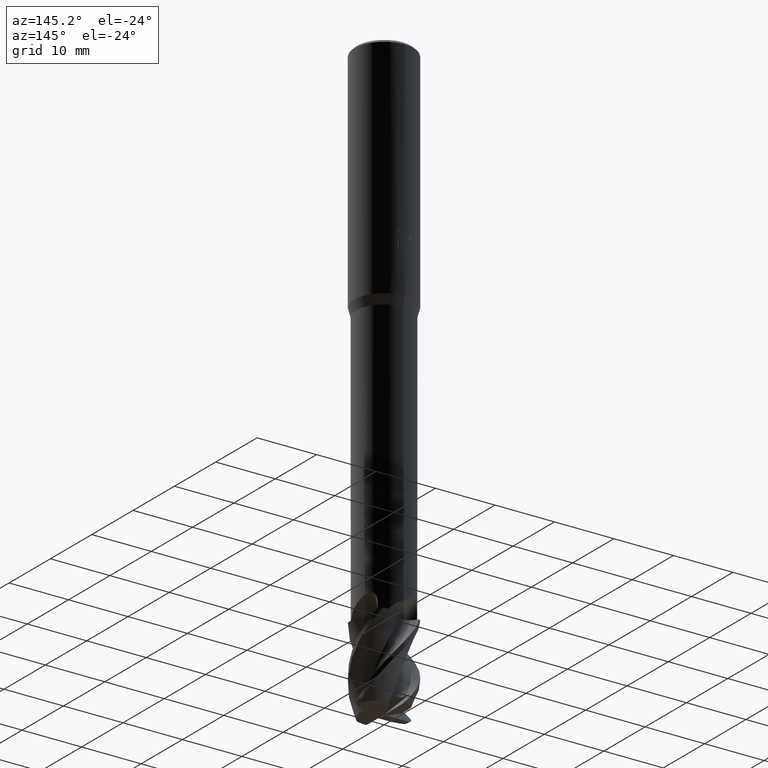
[diagram: clean part render]
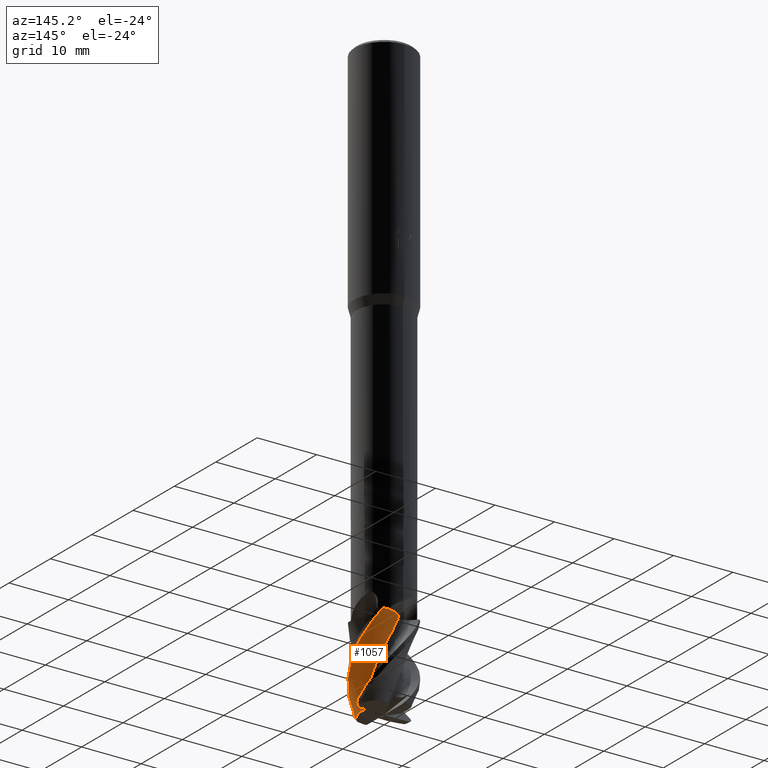
[diagram: same view with one face highlighted and labeled with its STEP entity id]
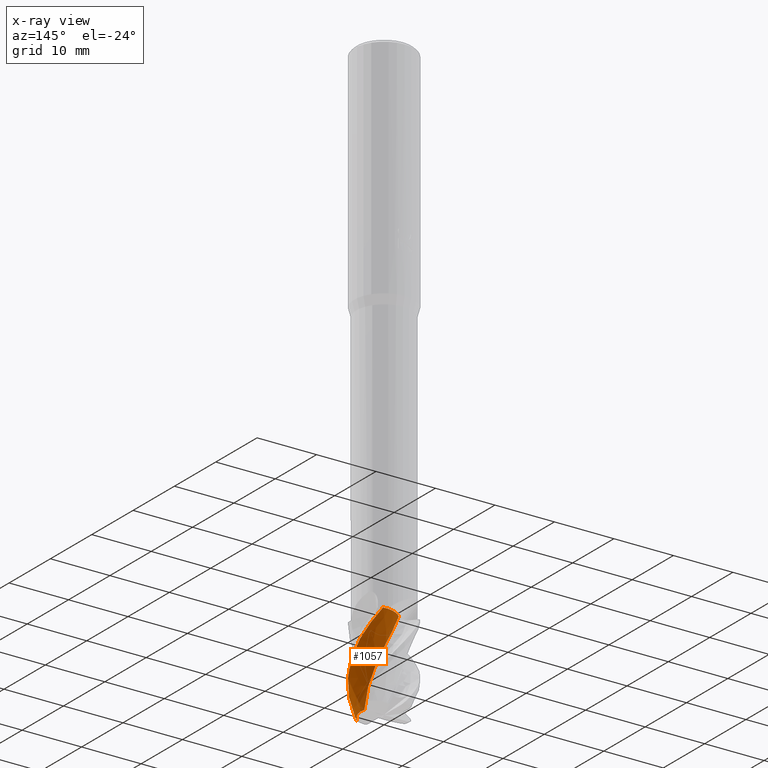
[diagram: x-ray of the same camera — body ghosted, the highlighted face saturated]
A machine part, auxiliary view. The second image highlights one B-rep face of the part: STEP entity #1057.
The next image is the same camera in x-ray: the body ghosted, the highlighted face saturated — about 0% of this face is hidden behind the body in this view.
In plain terms, the highlighted face is a freeform B-spline surface patch.
Its self-contained STEP definition (entity closure, byte-faithful):
#707=VERTEX_POINT('',#1748);
#715=VERTEX_POINT('',#1758);
#849=EDGE_CURVE('',#715,#1275,#1905,.T.);
#883=EDGE_CURVE('',#1275,#1115,#1940,.T.);
#897=EDGE_CURVE('',#1115,#707,#1955,.T.);
#943=EDGE_CURVE('',#715,#1091,#2006,.T.);
#1057=ADVANCED_FACE('',(#2128),#2129,.T.);
#1091=VERTEX_POINT('',#2167);
#1115=VERTEX_POINT('',#2195);
#1209=EDGE_CURVE('',#1383,#1473,#2302,.T.);
#1275=VERTEX_POINT('',#2376);
#1383=VERTEX_POINT('',#2492);
#1389=EDGE_CURVE('',#1473,#1091,#2499,.T.);
#1473=VERTEX_POINT('',#2593);
#1513=EDGE_CURVE('',#707,#1383,#2634,.T.);
#1748=CARTESIAN_POINT('',(2.95929053518834,4.03008679042331,-86.0));
#1758=CARTESIAN_POINT('',(2.46458393840777,-1.19446032478476,-99.4203739575267));
#1905=B_SPLINE_CURVE_WITH_KNOTS('',3,(#5359,#5360,#5361,#5362,#5363,#5364,#5365,#5366),.UNSPECIFIED.,.F.,.F.,(4,2,2,4),(0.0,1.36063409168268,2.46397720875639,3.66792738705715),.UNSPECIFIED.);
#1940=B_SPLINE_CURVE_WITH_KNOTS('',3,(#5787,#5788,#5789,#5790,#5791,#5792,#5793,#5794,#5795,#5796,#5797,#5798,#5799,#5800,#5801,#5802,#5803,#5804,#5805,#5806),.UNSPECIFIED.,.F.,.F.,(4,2,2,2,2,2,2,2,2,4),(0.0,0.763488793389617,1.73219035635958,2.43699732428372,2.89609081085094,3.19261038667703,3.45818700966978,3.76751911969154,3.91512844398984,4.03509061541733),.UNSPECIFIED.);
#1955=B_SPLINE_CURVE_WITH_KNOTS('',3,(#6141,#6142,#6143,#6144,#6145,#6146,#6147,#6148,#6149,#6150,#6151,#6152,#6153,#6154,#6155,#6156,#6157,#6158),.UNSPECIFIED.,.F.,.F.,(4,2,2,2,2,2,2,2,4),(0.0,1.63840875562654,2.79192932169225,5.00270083108418,7.47404294539052,8.65860958214234,12.7714476165259,13.8577995491319,17.0135442684477),.UNSPECIFIED.);
#2006=B_SPLINE_CURVE_WITH_KNOTS('',3,(#6492,#6493,#6494,#6495,#6496,#6497,#6498,#6499,#6500,#6501,#6502,#6503,#6504,#6505,#6506,#6507,#6508,#6509,#6510,#6511,#6512,#6513,#6514,#6515,#6516,#6517,#6518,#6519,#6520,#6521,#6522,#6523,#6524,#6525,#6526,#6527,#6528,#6529,#6530,#6531),.UNSPECIFIED.,.F.,.F.,(4,1,2,2,1,2,1,1,2,1,1,2,1,1,1,2,1,1,2,1,1,2,1,1,1,2,1,1,4),(0.0,0.533111191696942,1.06622238339388,2.13244476678777,3.19866715018165,4.26488953357553,5.33111191696942,6.93044549206024,8.52977906715106,10.1291126422419,11.7284462173327,12.7946686007266,13.8608909841205,14.9271133675144,15.9933357509082,17.0595581343021,18.125780517696,19.7251140927868,21.3244476678777,22.9237812429685,24.5231148180593,25.5893372014532,26.6555595848471,27.721781968241,28.7880043516348,29.8542267350287,30.9204491184226,32.5197826935134,34.1191162686043),.UNSPECIFIED.);
#2128=FACE_OUTER_BOUND('',#7505,.T.);
#2129=B_SPLINE_SURFACE_WITH_KNOTS('',3,3,((#7506,#7507,#7508,#7509,#7510,#7511,#7512,#7513,#7514,#7515,#7516,#7517,#7518,#7519,#7520,#7521,#7522,#7523,#7524,#7525,#7526,#7527,#7528,#7529,#7530,#7531,#7532,#7533,#7534,#7535,#7536,#7537,#7538,#7539,#7540,#7541,#7542,#7543,#7544,#7545),(#7546,#7547,#7548,#7549,#7550,#7551,#7552,#7553,#7554,#7555,#7556,#7557,#7558,#7559,#7560,#7561,#7562,#7563,#7564,#7565,#7566,#7567,#7568,#7569,#7570,#7571,#7572,#7573,#7574,#7575,#7576,#7577,#7578,#7579,#7580,#7581,#7582,#7583,#7584,#7585),(#7586,#7587,#7588,#7589,#7590,#7591,#7592,#7593,#7594,#7595,#7596,#7597,#7598,#7599,#7600,#7601,#7602,#7603,#7604,#7605,#7606,#7607,#7608,#7609,#7610,#7611,#7612,#7613,#7614,#7615,#7616,#7617,#7618,#7619,#7620,#7621,#7622,#7623,#7624,#7625),(#7626,#7627,#7628,#7629,#7630,#7631,#7632,#7633,#7634,#7635,#7636,#7637,#7638,#7639,#7640,#7641,#7642,#7643,#7644,#7645,#7646,#7647,#7648,#7649,#7650,#7651,#7652,#7653,#7654,#7655,#7656,#7657,#7658,#7659,#7660,#7661,#7662,#7663,#7664,#7665),(#7666,#7667,#7668,#7669,#7670,#7671,#7672,#7673,#7674,#7675,#7676,#7677,#7678,#7679,#7680,#7681,#7682,#7683,#7684,#7685,#7686,#7687,#7688,#7689,#7690,#7691,#7692,#7693,#7694,#7695,#7696,#7697,#7698,#7699,#7700,#7701,#7702,#7703,#7704,#7705),(#7706,#7707,#7708,#7709,#7710,#7711,#7712,#7713,#7714,#7715,#7716,#7717,#7718,#7719,#7720,#7721,#7722,#7723,#7724,#7725,#7726,#7727,#7728,#7729,#7730,#7731,#7732,#7733,#7734,#7735,#7736,#7737,#7738,#7739,#7740,#7741,#7742,#7743,#7744,#7745)),.UNSPECIFIED.,.F.,.F.,.F.,(4,1,1,4),(4,1,2,2,1,2,1,1,2,1,1,2,1,1,1,2,1,1,2,1,1,2,1,1,1,2,1,1,4),(-1.11221997675852,-0.695137485474076,-0.27805499418963,0.0),(0.0,0.533111191696942,1.06622238339388,2.13244476678777,3.19866715018165,4.26488953357553,5.33111191696942,6.93044549206024,8.52977906715106,10.1291126422419,11.7284462173327,12.7946686007266,13.8608909841205,14.9271133675144,15.9933357509082,17.0595581343021,18.125780517696,19.7251140927868,21.3244476678777,22.9237812429685,24.5231148180593,25.5893372014532,26.6555595848471,27.721781968241,28.7880043516348,29.8542267350287,30.9204491184226,32.5197826935134,34.1191162686043),.UNSPECIFIED.);
#2167=CARTESIAN_POINT('',(-0.617454971103078,2.66715525666732,-86.0));
#2195=CARTESIAN_POINT('',(1.60810075579514,-4.73434387842826,-99.0));
#2302=B_SPLINE_CURVE_WITH_KNOTS('',3,(#8194,#8195,#8196,#8197,#8198,#8199,#8200,#8201),.UNSPECIFIED.,.F.,.F.,(4,2,2,4),(0.0,1.55396299500601,2.99562165843263,4.43724657818039),.UNSPECIFIED.);
#2376=CARTESIAN_POINT('',(1.48922341389941,-4.43207069036558,-99.7372878029424));
#2492=CARTESIAN_POINT('',(2.95645139073143,4.03047965508528,-86.0));
#2499=B_SPLINE_CURVE_WITH_KNOTS('',3,(#9208,#9209,#9210,#9211,#9212,#9213,#9214,#9215),.UNSPECIFIED.,.F.,.F.,(4,2,2,4),(0.0,1.55396299500601,2.99562165843263,4.43724657818039),.UNSPECIFIED.);
#2593=CARTESIAN_POINT('',(0.450449417948646,3.5502020863669,-86.0));
#2634=B_SPLINE_CURVE_WITH_KNOTS('',3,(#10307,#10308,#10309,#10310,#10311,#10312,#10313,#10314),.UNSPECIFIED.,.F.,.F.,(4,2,2,4),(0.0,1.55396299500601,2.99562165843263,4.43724657818039),.UNSPECIFIED.);
#5359=CARTESIAN_POINT('',(2.46458393835482,-1.19446032484924,-99.4203739576188));
#5360=CARTESIAN_POINT('',(2.5564800064868,-1.63759275941836,-99.3905151150763));
#5361=CARTESIAN_POINT('',(2.56783953796667,-2.09157069735328,-99.3868241796174));
#5362=CARTESIAN_POINT('',(2.42844828787931,-2.89878484355643,-99.4321151422533));
#5363=CARTESIAN_POINT('',(2.30960509695874,-3.24476363260082,-99.4707296356818));
#5364=CARTESIAN_POINT('',(1.953369944054,-3.91555887586005,-99.5864774533511));
#5365=CARTESIAN_POINT('',(1.71071857020019,-4.22713370161167,-99.6653196640401));
#5366=CARTESIAN_POINT('',(1.42514556365914,-4.49325387717375,-99.7581079585777));
#5787=CARTESIAN_POINT('',(2.44764908019172,-2.14696270285158,-99.6679912833822));
#5788=CARTESIAN_POINT('',(2.39471213136179,-2.36665387071781,-99.7850460519133));
#5789=CARTESIAN_POINT('',(2.32349310830297,-2.62111645432726,-99.8785767427105));
#5790=CARTESIAN_POINT('',(2.09718126805151,-3.24254281525034,-100.010984271003));
#5791=CARTESIAN_POINT('',(1.94397179990812,-3.56525231639125,-100.016682474976));
#5792=CARTESIAN_POINT('',(1.69930413475569,-4.03429176579185,-99.9377956636569));
#5793=CARTESIAN_POINT('',(1.60364736923338,-4.20444639273719,-99.8773129316889));
#5794=CARTESIAN_POINT('',(1.48698860333397,-4.4334110846502,-99.7425111886268));
#5795=CARTESIAN_POINT('',(1.45160690678593,-4.51043862941112,-99.6803712264938));
#5796=CARTESIAN_POINT('',(1.41859264448857,-4.61336867665502,-99.5658112945794));
#5797=CARTESIAN_POINT('',(1.41152548301764,-4.64922697304423,-99.5160224306468));
#5798=CARTESIAN_POINT('',(1.41464912364204,-4.70439682032837,-99.4127809432889));
#5799=CARTESIAN_POINT('',(1.42307450798952,-4.72391895605669,-99.3623886262486));
#5800=CARTESIAN_POINT('',(1.45659967944595,-4.75186049099506,-99.2508607348539));
#5801=CARTESIAN_POINT('',(1.48327325192308,-4.75714400189776,-99.1924394507496));
#5802=CARTESIAN_POINT('',(1.53087038699409,-4.75390712240751,-99.1100086227466));
#5803=CARTESIAN_POINT('',(1.54742493618877,-4.75116089886971,-99.0841124114633));
#5804=CARTESIAN_POINT('',(1.57886554555739,-4.74362727415154,-99.0386640980977));
#5805=CARTESIAN_POINT('',(1.59351262688738,-4.73931145586726,-99.0187896408048));
#5806=CARTESIAN_POINT('',(1.60852445748512,-4.73419978233393,-98.999453992404));
#6141=CARTESIAN_POINT('',(1.60810075579512,-4.73434387842826,-99.0));
#6142=CARTESIAN_POINT('',(1.93579221945945,-4.62303444393643,-98.5775153019963));
#6143=CARTESIAN_POINT('',(2.25540755764547,-4.47653863851059,-98.1544246090336));
#6144=CARTESIAN_POINT('',(2.77560889629658,-4.16635259634831,-97.4465840384272));
#6145=CARTESIAN_POINT('',(2.97386245803902,-4.02709342738503,-97.1757158918224));
#6146=CARTESIAN_POINT('',(3.53360029242131,-3.56921385424015,-96.3372279014516));
#6147=CARTESIAN_POINT('',(3.85036491737583,-3.22266902281028,-95.771360197233));
#6148=CARTESIAN_POINT('',(4.40406245123715,-2.42234520238801,-94.5810189516105));
#6149=CARTESIAN_POINT('',(4.63478669709498,-1.94968865575533,-93.9444367160059));
#6150=CARTESIAN_POINT('',(4.86144895465113,-1.19618400609644,-93.0331906808896));
#6151=CARTESIAN_POINT('',(4.9152423529072,-0.952267259753399,-92.7536681488419));
#6152=CARTESIAN_POINT('',(5.07627682393399,0.19316459389697,-91.3987211202973));
#6153=CARTESIAN_POINT('',(4.96021058454471,1.09738373014517,-90.2755638697506));
#6154=CARTESIAN_POINT('',(4.52206235901942,2.14629778651241,-88.9479826450088));
#6155=CARTESIAN_POINT('',(4.41877744760354,2.35133593168787,-88.6909540783812));
#6156=CARTESIAN_POINT('',(3.95040148707954,3.13990191595019,-87.6292153620039));
#6157=CARTESIAN_POINT('',(3.49138859161123,3.63937513115,-86.8019928661655));
#6158=CARTESIAN_POINT('',(2.95929053518842,4.03008679042329,-86.0));
#6492=CARTESIAN_POINT('',(-1.54516668842389,-2.28963209410875,-110.0));
#6493=CARTESIAN_POINT('',(-1.54789105312952,-2.27243339143777,-109.822929236957));
#6494=CARTESIAN_POINT('',(-1.51161431295414,-2.27671522573982,-109.469130078835));
#6495=CARTESIAN_POINT('',(-1.38632638722857,-2.35352303213235,-109.115504795201));
#6496=CARTESIAN_POINT('',(-1.12050721890471,-2.50608634539226,-108.583913295148));
#6497=CARTESIAN_POINT('',(-0.953286613500552,-2.57367654146409,-108.229238830236));
#6498=CARTESIAN_POINT('',(-0.648362387018865,-2.66594375716846,-107.520931885504));
#6499=CARTESIAN_POINT('',(-0.336413484435908,-2.73140804790596,-106.812733553959));
#6500=CARTESIAN_POINT('',(-0.00743352143074508,-2.74344824991202,-106.104629585088));
#6501=CARTESIAN_POINT('',(0.330571610648912,-2.72533515363679,-105.396317366653));
#6502=CARTESIAN_POINT('',(0.736862779008588,-2.66278705826968,-104.510643795112));
#6503=CARTESIAN_POINT('',(1.32377251774003,-2.43059528310644,-103.093908494911));
#6504=CARTESIAN_POINT('',(1.72102976434806,-2.14312557454905,-102.031933589688));
#6505=CARTESIAN_POINT('',(2.09194067000029,-1.78826282464492,-100.969378231994));
#6506=CARTESIAN_POINT('',(2.39148081391437,-1.39933505974508,-99.9063172807188));
#6507=CARTESIAN_POINT('',(2.63593996303091,-0.815447165474006,-98.4898125337973));
#6508=CARTESIAN_POINT('',(2.71205076793275,-0.40859305141722,-97.6047188318132));
#6509=CARTESIAN_POINT('',(2.74403937313193,-0.0684557236212582,-96.8963985137498));
#6510=CARTESIAN_POINT('',(2.74198742916347,0.263026884328322,-96.1878292817798));
#6511=CARTESIAN_POINT('',(2.65310992192513,0.73243439558589,-95.1251167335774));
#6512=CARTESIAN_POINT('',(2.48531085263667,1.17959400619334,-94.0628407495212));
#6513=CARTESIAN_POINT('',(2.31824166482224,1.46561909406563,-93.3547523565621));
#6514=CARTESIAN_POINT('',(2.11988357152769,1.74375509884639,-92.6464162281023));
#6515=CARTESIAN_POINT('',(1.84676182356229,2.05525411187739,-91.7606804992409));
#6516=CARTESIAN_POINT('',(1.33325499055764,2.42571433609205,-90.3438192675192));
#6517=CARTESIAN_POINT('',(0.877472469122831,2.60490473795196,-89.281829321325));
#6518=CARTESIAN_POINT('',(0.379538000389292,2.7257725837089,-88.2193325157699));
#6519=CARTESIAN_POINT('',(-0.109097365150499,2.76859152423723,-87.1563264800329));
#6520=CARTESIAN_POINT('',(-0.733066953481083,2.66005727243173,-85.7398418501745));
#6521=CARTESIAN_POINT('',(-1.11706893129815,2.50490598332421,-84.8547237795645));
#6522=CARTESIAN_POINT('',(-1.42094221646516,2.34854890411273,-84.1463724932135));
#6523=CARTESIAN_POINT('',(-1.69900201829688,2.16822684324508,-83.4377827007988));
#6524=CARTESIAN_POINT('',(-2.04629380123624,1.84063394508397,-82.3750798423888));
#6525=CARTESIAN_POINT('',(-2.33250665840769,1.4585338727942,-81.3128560835986));
#6526=CARTESIAN_POINT('',(-2.48362827035255,1.16355691033106,-80.604827774896));
#6527=CARTESIAN_POINT('',(-2.61133217941648,0.846190011608393,-79.8965600349057));
#6528=CARTESIAN_POINT('',(-2.7268875561504,0.447599754835368,-79.0108532733666));
#6529=CARTESIAN_POINT('',(-2.76190787509729,-0.184357212848967,-77.5938360057183));
#6530=CARTESIAN_POINT('',(-2.66744871726789,-0.661288988442122,-76.5316361583206));
#6531=CARTESIAN_POINT('',(-2.58521970340524,-0.900887727108747,-76.0003002898828));
#7505=EDGE_LOOP('',(#11066,#11067,#11068,#11069,#11070,#11071,#11072));
#7506=CARTESIAN_POINT('',(-5.19564065181808,-0.212880755921786,-110.0));
#7507=CARTESIAN_POINT('',(-5.19601170504046,-0.191545450198992,-109.822921073161));
#7508=CARTESIAN_POINT('',(-5.19466936278814,-0.254997401588737,-109.468776580825));
#7509=CARTESIAN_POINT('',(-5.17474888347296,-0.534097206601836,-109.114637380673));
#7510=CARTESIAN_POINT('',(-5.09307786472242,-1.10899720047572,-108.583364317521));
#7511=CARTESIAN_POINT('',(-5.00434016001582,-1.43887356418369,-108.229169436411));
#7512=CARTESIAN_POINT('',(-4.80382860739224,-2.00952971756008,-107.520838813393));
#7513=CARTESIAN_POINT('',(-4.55457563368301,-2.56106462704611,-106.812513279083));
#7514=CARTESIAN_POINT('',(-4.20199652990447,-3.07719797114485,-106.104192227707));
#7515=CARTESIAN_POINT('',(-3.7913574650734,-3.57115472842145,-105.395859336741));
#7516=CARTESIAN_POINT('',(-3.23814208675827,-4.12106018867106,-104.510427092286));
#7517=CARTESIAN_POINT('',(-2.22587973870981,-4.76250030019071,-103.093756080634));
#7518=CARTESIAN_POINT('',(-1.33876161412757,-5.04657537549154,-102.031286415814));
#7519=CARTESIAN_POINT('',(-0.37810280800565,-5.20749837320416,-100.968783005532));
#7520=CARTESIAN_POINT('',(0.552963521057885,-5.22795937268072,-99.9062501847433));
#7521=CARTESIAN_POINT('',(1.72256418740385,-4.95018851485183,-98.4895922595851));
#7522=CARTESIAN_POINT('',(2.42964545705149,-4.60705985665225,-97.604193888517));
#7523=CARTESIAN_POINT('',(2.98316772152028,-4.26960504580663,-96.8958609987699));
#7524=CARTESIAN_POINT('',(3.48656393986093,-3.89249811293236,-96.1875137101225));
#7525=CARTESIAN_POINT('',(4.10640653560016,-3.23039403044979,-95.1250009921874));
#7526=CARTESIAN_POINT('',(4.6038526746645,-2.47205501382419,-94.0625135741522));
#7527=CARTESIAN_POINT('',(4.85186725501041,-1.89408474803594,-93.3541941683433));
#7528=CARTESIAN_POINT('',(5.04963160999095,-1.27674265971293,-92.6458604139133));
#7529=CARTESIAN_POINT('',(5.21673237228439,-0.50867466757891,-91.760424943389));
#7530=CARTESIAN_POINT('',(5.21106874684913,0.693438143396909,-90.3437464700358));
#7531=CARTESIAN_POINT('',(4.97222727471754,1.59256478397458,-89.2812755838609));
#7532=CARTESIAN_POINT('',(4.59080163239005,2.48692046909455,-88.2187753354462));
#7533=CARTESIAN_POINT('',(4.10696226299667,3.28180412953648,-87.1562455874301));
#7534=CARTESIAN_POINT('',(3.24247188793053,4.11807208411942,-85.7395889008956));
#7535=CARTESIAN_POINT('',(2.57203790926344,4.52911059677187,-84.8541892217347));
#7536=CARTESIAN_POINT('',(1.98934099446754,4.81367440789519,-84.1458546273826));
#7537=CARTESIAN_POINT('',(1.40054871081758,5.03447558153229,-83.4375062431678));
#7538=CARTESIAN_POINT('',(0.509413547387121,5.19983481543386,-82.3749941723748));
#7539=CARTESIAN_POINT('',(-0.397089363809171,5.21045415859259,-81.312509732606));
#7540=CARTESIAN_POINT('',(-1.01800173185388,5.10804312303886,-80.6041936371242));
#7541=CARTESIAN_POINT('',(-1.64549281459026,4.9418155458113,-79.8958635795382));
#7542=CARTESIAN_POINT('',(-2.38381674270685,4.66820179182286,-79.0104293392831));
#7543=CARTESIAN_POINT('',(-3.3925840509837,4.01540947410099,-77.5937433076653));
#7544=CARTESIAN_POINT('',(-4.01676857963547,3.33471657211653,-76.5312669464229));
#7545=CARTESIAN_POINT('',(-4.2884391108022,2.93810951804706,-76.0000173893713));
#7546=CARTESIAN_POINT('',(-4.93170831188153,-0.698890583402488,-110.0));
#7547=CARTESIAN_POINT('',(-4.93263009617096,-0.677854357252117,-109.82292295979));
#7548=CARTESIAN_POINT('',(-4.92326774583871,-0.737116714874863,-109.468858273003));
#7549=CARTESIAN_POINT('',(-4.87750162309017,-1.00091525614851,-109.114837837721));
#7550=CARTESIAN_POINT('',(-4.74587889553126,-1.54137925085135,-108.583491184082));
#7551=CARTESIAN_POINT('',(-4.63013231108458,-1.84737569768814,-108.229185474992));
#7552=CARTESIAN_POINT('',(-4.38469090686308,-2.37178446377649,-107.520860320188));
#7553=CARTESIAN_POINT('',(-4.09463989343061,-2.87331318599875,-106.812564184229));
#7554=CARTESIAN_POINT('',(-3.70966163025709,-3.33142641602983,-106.104293300917));
#7555=CARTESIAN_POINT('',(-3.27155320698191,-3.76306259952707,-105.395965184765));
#7556=CARTESIAN_POINT('',(-2.69219988970912,-4.2342563922064,-104.510477174925));
#7557=CARTESIAN_POINT('',(-1.66678612075495,-4.74842057478127,-103.093791303472));
#7558=CARTESIAN_POINT('',(-0.794728973743361,-4.93452248486523,-102.031435976876));
#7559=CARTESIAN_POINT('',(0.135821408248265,-4.99676567408118,-100.968920559344));
#7560=CARTESIAN_POINT('',(1.02471121076404,-4.92754278013757,-99.9062656937224));
#7561=CARTESIAN_POINT('',(2.11211800397034,-4.55122970476845,-98.4896431675592));
#7562=CARTESIAN_POINT('',(2.75305847478471,-4.15711613319217,-97.6043151969063));
#7563=CARTESIAN_POINT('',(3.24843679342309,-3.78311048141173,-96.8959852211994));
#7564=CARTESIAN_POINT('',(3.69213043121298,-3.37597355902731,-96.1875866305401));
#7565=CARTESIAN_POINT('',(4.21931297419949,-2.68615959872416,-95.1250277375781));
#7566=CARTESIAN_POINT('',(4.62072593680893,-1.91638416081815,-94.0625891763318));
#7567=CARTESIAN_POINT('',(4.80202333980245,-1.34221450158028,-93.3543231880261));
#7568=CARTESIAN_POINT('',(4.93190618912927,-0.735276827360489,-92.6459888367445));
#7569=CARTESIAN_POINT('',(5.01803546027523,0.0123257436558067,-91.7604840155555));
#7570=CARTESIAN_POINT('',(4.89776598717778,1.15672247430266,-90.3437632968952));
#7571=CARTESIAN_POINT('',(4.58461953349799,1.99040775347875,-89.2814035537165));
#7572=CARTESIAN_POINT('',(4.13639937487065,2.80635180276891,-88.2189040952524));
#7573=CARTESIAN_POINT('',(3.59974895415921,3.51745492737685,-87.1562642891235));
#7574=CARTESIAN_POINT('',(2.6964879238482,4.23133430116956,-85.7396473698311));
#7575=CARTESIAN_POINT('',(2.01873483750826,4.55913852685629,-84.854312741094));
#7576=CARTESIAN_POINT('',(1.43657506353598,4.77500749434738,-84.1459743198698));
#7577=CARTESIAN_POINT('',(0.854654991298419,4.92934700512446,-83.4375701287285));
#7578=CARTESIAN_POINT('',(-0.0099187649349386,5.00177096142544,-82.3750139643249));
#7579=CARTESIAN_POINT('',(-0.874343176995363,4.92535178728339,-81.3125897580723));
#7580=CARTESIAN_POINT('',(-1.45609717277876,4.76874913514683,-80.6043402053322));
#7581=CARTESIAN_POINT('',(-2.03819549469218,4.55087825702938,-79.8960245072937));
#7582=CARTESIAN_POINT('',(-2.71555340592928,4.21999913044783,-79.0105273155204));
#7583=CARTESIAN_POINT('',(-3.61396476741456,3.50185376614619,-77.5937647041357));
#7584=CARTESIAN_POINT('',(-4.14361026678824,2.79399871343359,-76.531352335936));
#7585=CARTESIAN_POINT('',(-4.36478591291926,2.39035319083175,-76.000082766801));
#7586=CARTESIAN_POINT('',(-4.19837080486292,-1.5589861157218,-110.0));
#7587=CARTESIAN_POINT('',(-4.20026722419521,-1.53878088448303,-109.822926309318));
#7588=CARTESIAN_POINT('',(-4.17664167402808,-1.58627330488605,-109.46900331146));
#7589=CARTESIAN_POINT('',(-4.08567170355595,-1.80854311749472,-109.115193732384));
#7590=CARTESIAN_POINT('',(-3.86874133922818,-2.25902072180268,-108.583716427436));
#7591=CARTESIAN_POINT('',(-3.70909446614438,-2.50584362890785,-108.229213943548));
#7592=CARTESIAN_POINT('',(-3.39338341939652,-2.91877421361125,-107.520898510464));
#7593=CARTESIAN_POINT('',(-3.04291444068553,-3.30305721259495,-106.81265455977));
#7594=CARTESIAN_POINT('',(-2.61770185329666,-3.63145451385748,-106.104472746731));
#7595=CARTESIAN_POINT('',(-2.15103541339653,-3.92686179770615,-105.39615311118));
#7596=CARTESIAN_POINT('',(-1.55272078822622,-4.22961666925803,-104.510566083251));
#7597=CARTESIAN_POINT('',(-0.554857728779261,-4.48373380384667,-103.093853837773));
#7598=CARTESIAN_POINT('',(0.245636254412908,-4.48031416835157,-102.031701503902));
#7599=CARTESIAN_POINT('',(1.07423772727393,-4.3579889841411,-100.96916478199));
#7600=CARTESIAN_POINT('',(1.84085484147597,-4.12729034980816,-99.9062932156181));
#7601=CARTESIAN_POINT('',(2.72222820053675,-3.58871970578857,-98.4897335413194));
#7602=CARTESIAN_POINT('',(3.20935268652889,-3.12064601689372,-97.6045305858277));
#7603=CARTESIAN_POINT('',(3.5730110460586,-2.69815722013509,-96.8962057527665));
#7604=CARTESIAN_POINT('',(3.88462702885683,-2.25623490584042,-96.1877161207095));
#7605=CARTESIAN_POINT('',(4.21481636433561,-1.55021771067032,-95.1250752315746));
#7606=CARTESIAN_POINT('',(4.4193764970495,-0.798204205239146,-94.0627234251164));
#7607=CARTESIAN_POINT('',(4.46888348959672,-0.25985964605575,-93.3545521700286));
#7608=CARTESIAN_POINT('',(4.46744182557346,0.297556300471117,-92.6462169234815));
#7609=CARTESIAN_POINT('',(4.40033011922741,0.969982585830459,-91.7605888453386));
#7610=CARTESIAN_POINT('',(4.07532876855189,1.95049222590986,-90.3437931547364));
#7611=CARTESIAN_POINT('',(3.64129868733496,2.62189404802503,-89.2816307608552));
#7612=CARTESIAN_POINT('',(3.09269906930421,3.25279854440408,-88.2191326912636));
#7613=CARTESIAN_POINT('',(2.48590002525673,3.77404318440438,-87.1562974680252));
#7614=CARTESIAN_POINT('',(1.55689738410051,4.22680886874198,-85.7397511317578));
#7615=CARTESIAN_POINT('',(0.899723831543509,4.38509306245883,-84.854532092539));
#7616=CARTESIAN_POINT('',(0.347700688594767,4.46383666267404,-84.1461867717742));
#7617=CARTESIAN_POINT('',(-0.192360838388474,4.48819620836785,-83.4376835638108));
#7618=CARTESIAN_POINT('',(-0.964508144286467,4.38603714102293,-82.375049125167));
#7619=CARTESIAN_POINT('',(-1.70797503735285,4.15339006561019,-81.3127318832795));
#7620=CARTESIAN_POINT('',(-2.18850669754664,3.9050001221994,-80.6046003628435));
#7621=CARTESIAN_POINT('',(-2.65799535391742,3.60307479227817,-79.8963102844477));
#7622=CARTESIAN_POINT('',(-3.18922702119194,3.18348868789076,-79.0107012549483));
#7623=CARTESIAN_POINT('',(-3.83933728396557,2.38136065824154,-77.5938027717906));
#7624=CARTESIAN_POINT('',(-4.16846439169785,1.65919250302032,-76.5315037260897));
#7625=CARTESIAN_POINT('',(-4.28569979056094,1.26283662967108,-76.0001988392481));
#7626=CARTESIAN_POINT('',(-2.83975856646554,-2.21119471368568,-110.0));
#7627=CARTESIAN_POINT('',(-2.842394048419,-2.19252901952595,-109.822928881828));
#7628=CARTESIAN_POINT('',(-2.80774139212306,-2.217968058685,-109.469114700115));
#7629=CARTESIAN_POINT('',(-2.68410716727217,-2.36519273387927,-109.115467058594));
#7630=CARTESIAN_POINT('',(-2.41180885687525,-2.65988939804032,-108.583889412394));
#7631=CARTESIAN_POINT('',(-2.23062009127088,-2.81086307408757,-108.229235810958));
#7632=CARTESIAN_POINT('',(-1.88948364376986,-3.04993993798949,-107.520927836775));
#7633=CARTESIAN_POINT('',(-1.52871419275468,-3.25866157866819,-106.812723970138));
#7634=CARTESIAN_POINT('',(-1.12454176655377,-3.40720182586039,-106.104610559449));
#7635=CARTESIAN_POINT('',(-0.696667386716711,-3.52112161327382,-105.396297438878));
#7636=CARTESIAN_POINT('',(-0.166245616239998,-3.60831116994689,-104.510634368171));
#7637=CARTESIAN_POINT('',(0.657533193049065,-3.56032619630559,-103.0939018625));
#7638=CARTESIAN_POINT('',(1.26839770020982,-3.3645518221306,-102.031905436671));
#7639=CARTESIAN_POINT('',(1.87300674195024,-3.07232681423747,-100.969352334953));
#7640=CARTESIAN_POINT('',(2.40333421924971,-2.71085814764092,-99.9063143616089));
#7641=CARTESIAN_POINT('',(2.94589437842755,-2.08581960493855,-98.4898029511575));
#7642=CARTESIAN_POINT('',(3.20556303886534,-1.61069658716453,-97.6046959936069));
#7643=CARTESIAN_POINT('',(3.38246475616034,-1.20027578533127,-96.8963751301931));
#7644=CARTESIAN_POINT('',(3.51428884218568,-0.78731167451909,-96.1878155536775));
#7645=CARTESIAN_POINT('',(3.59559645192057,-0.167976932607795,-95.125111697262));
#7646=CARTESIAN_POINT('',(3.56979702265033,0.456027703940811,-94.0628265128023));
#7647=CARTESIAN_POINT('',(3.47801245005719,0.879497722744425,-93.3547280768606));
#7648=CARTESIAN_POINT('',(3.34324727146496,1.30559514329036,-92.6463920436371));
#7649=CARTESIAN_POINT('',(3.12995767119702,1.80358971111952,-91.7606693886521));
#7650=CARTESIAN_POINT('',(2.64394254843896,2.47371246318173,-90.3438161031665));
#7651=CARTESIAN_POINT('',(2.15024008984777,2.88198460949935,-89.2818052285809));
#7652=CARTESIAN_POINT('',(1.57925684113158,3.23309879888303,-88.2193082785424));
#7653=CARTESIAN_POINT('',(0.989528044298553,3.48501246820632,-87.1563229579606));
#7654=CARTESIAN_POINT('',(0.170224617098703,3.60558250627052,-85.7398308521362));
#7655=CARTESIAN_POINT('',(-0.370273185201314,3.56834707171613,-84.8547005131516));
#7656=CARTESIAN_POINT('',(-0.811473383591496,3.49622260312971,-84.1463499744124));
#7657=CARTESIAN_POINT('',(-1.23028394981883,3.38475725067516,-83.4377706690525));
#7658=CARTESIAN_POINT('',(-1.79544133641777,3.11972521271943,-82.3750761150066));
#7659=CARTESIAN_POINT('',(-2.30705712095627,2.7619944279815,-81.3128410128158));
#7660=CARTESIAN_POINT('',(-2.61461077483517,2.45640871125566,-80.6048001913444));
#7661=CARTESIAN_POINT('',(-2.90141868504345,2.11286611612596,-79.8965297316094));
#7662=CARTESIAN_POINT('',(-3.20660040862292,1.66410021625152,-79.0108348412534));
#7663=CARTESIAN_POINT('',(-3.50866599362145,0.893755256401318,-77.5938319717138));
#7664=CARTESIAN_POINT('',(-3.58563549929028,0.262478143154507,-76.531620100201));
#7665=CARTESIAN_POINT('',(-3.58011020141421,-0.0688339727390962,-76.0002879824257));
#7666=CARTESIAN_POINT('',(-1.91358979082734,-2.30394249606448,-110.0));
#7667=CARTESIAN_POINT('',(-1.91633037069722,-2.28632630774119,-109.822929277232));
#7668=CARTESIAN_POINT('',(-1.87991656096859,-2.29663884048103,-109.46913182482));
#7669=CARTESIAN_POINT('',(-1.75311115934331,-2.39341265744185,-109.115509079785));
#7670=CARTESIAN_POINT('',(-1.48145199408681,-2.58599971943972,-108.583916006413));
#7671=CARTESIAN_POINT('',(-1.30792926006927,-2.67678347090913,-108.229239172956));
#7672=CARTESIAN_POINT('',(-0.988622363941393,-2.80955898687713,-107.520932345253));
#7673=CARTESIAN_POINT('',(-0.658824320863405,-2.91417124017264,-106.81273464275));
#7674=CARTESIAN_POINT('',(-0.304725689082052,-2.96270440623527,-106.104631743722));
#7675=CARTESIAN_POINT('',(0.0624239064006971,-2.97940682366733,-105.396319630614));
#7676=CARTESIAN_POINT('',(0.508050482744109,-2.95571660300933,-104.510644864239));
#7677=CARTESIAN_POINT('',(1.16715866784989,-2.76895481194494,-103.093909245848));
#7678=CARTESIAN_POINT('',(1.62742590723101,-2.50140144899283,-102.031936789647));
#7679=CARTESIAN_POINT('',(2.06621086057736,-2.15766885594447,-100.969381168637));
#7680=CARTESIAN_POINT('',(2.43180984405476,-1.77000205174244,-99.9063176162497));
#7681=CARTESIAN_POINT('',(2.75943507969782,-1.16606913207932,-98.4898136209529));
#7682=CARTESIAN_POINT('',(2.88554566923709,-0.734728165197926,-97.6047214264626));
#7683=CARTESIAN_POINT('',(2.95654550858245,-0.37062362555076,-96.8964011669141));
#7684=CARTESIAN_POINT('',(2.99006694472388,-0.0123172960007077,-96.1878308395108));
#7685=CARTESIAN_POINT('',(2.94510416310845,0.504299400776865,-95.1251173098771));
#7686=CARTESIAN_POINT('',(2.81248786420321,1.00548801603419,-94.0628423703448));
#7687=CARTESIAN_POINT('',(2.66284003970124,1.33251577437287,-93.3547551077633));
#7688=CARTESIAN_POINT('',(2.47829949356006,1.65429971108819,-92.6464189793034));
#7689=CARTESIAN_POINT('',(2.21684505399636,2.02024109078895,-91.7606817539459));
#7690=CARTESIAN_POINT('',(1.70266659078517,2.47624436397942,-90.3438196182954));
#7691=CARTESIAN_POINT('',(1.22969881699076,2.71916789029669,-89.2818320649098));
#7692=CARTESIAN_POINT('',(0.704609078145701,2.9031079175851,-88.2193352593548));
#7693=CARTESIAN_POINT('',(0.181481554009978,3.00222503498259,-87.1563268823069));
#7694=CARTESIAN_POINT('',(-0.504202871456189,2.95299229740801,-85.7398430966861));
#7695=CARTESIAN_POINT('',(-0.935798512888755,2.82678471246147,-84.8547264255013));
#7696=CARTESIAN_POINT('',(-1.28089335561617,2.69038351724211,-84.1463750455266));
#7697=CARTESIAN_POINT('',(-1.60070975799145,2.52557130416228,-83.4377840695745));
#7698=CARTESIAN_POINT('',(-2.01139473716983,2.20953318782462,-82.3750802680048));
#7699=CARTESIAN_POINT('',(-2.36205619727093,1.8279718374947,-81.3128577929848));
#7700=CARTESIAN_POINT('',(-2.55712991376465,1.52558357646961,-80.604830908866));
#7701=CARTESIAN_POINT('',(-2.72910288722503,1.19632650624692,-79.896563473153));
#7702=CARTESIAN_POINT('',(-2.89688479940971,0.778196491908825,-79.0108553549237));
#7703=CARTESIAN_POINT('',(-3.00354478604781,0.0995637448469681,-77.5938364665965));
#7704=CARTESIAN_POINT('',(-2.95322756107339,-0.425862062236191,-76.5316379769609));
#7705=CARTESIAN_POINT('',(-2.89011066293641,-0.693567026784992,-76.000301687216));
#7706=CARTESIAN_POINT('',(-1.54516668842389,-2.28963209410875,-110.0));
#7707=CARTESIAN_POINT('',(-1.54789105312952,-2.27243339143777,-109.822929236957));
#7708=CARTESIAN_POINT('',(-1.51161431295414,-2.27671522573982,-109.469130078835));
#7709=CARTESIAN_POINT('',(-1.38632638722857,-2.35352303213235,-109.115504795201));
#7710=CARTESIAN_POINT('',(-1.12050721890471,-2.50608634539226,-108.583913295148));
#7711=CARTESIAN_POINT('',(-0.953286613500552,-2.57367654146409,-108.229238830236));
#7712=CARTESIAN_POINT('',(-0.648362387018865,-2.66594375716846,-107.520931885504));
#7713=CARTESIAN_POINT('',(-0.336413484435908,-2.73140804790596,-106.812733553959));
#7714=CARTESIAN_POINT('',(-0.00743352143074508,-2.74344824991202,-106.104629585088));
#7715=CARTESIAN_POINT('',(0.330571610648912,-2.72533515363679,-105.396317366653));
#7716=CARTESIAN_POINT('',(0.736862779008588,-2.66278705826968,-104.510643795112));
#7717=CARTESIAN_POINT('',(1.32377251774003,-2.43059528310644,-103.093908494911));
#7718=CARTESIAN_POINT('',(1.72102976434806,-2.14312557454905,-102.031933589688));
#7719=CARTESIAN_POINT('',(2.09194067000029,-1.78826282464492,-100.969378231994));
#7720=CARTESIAN_POINT('',(2.39148081391437,-1.39933505974508,-99.9063172807188));
#7721=CARTESIAN_POINT('',(2.63593996303091,-0.815447165474006,-98.4898125337973));
#7722=CARTESIAN_POINT('',(2.71205076793275,-0.40859305141722,-97.6047188318132));
#7723=CARTESIAN_POINT('',(2.74403937313193,-0.0684557236212582,-96.8963985137498));
#7724=CARTESIAN_POINT('',(2.74198742916347,0.263026884328322,-96.1878292817798));
#7725=CARTESIAN_POINT('',(2.65310992192513,0.73243439558589,-95.1251167335774));
#7726=CARTESIAN_POINT('',(2.48531085263667,1.17959400619334,-94.0628407495212));
#7727=CARTESIAN_POINT('',(2.31824166482224,1.46561909406563,-93.3547523565621));
#7728=CARTESIAN_POINT('',(2.11988357152769,1.74375509884639,-92.6464162281023));
#7729=CARTESIAN_POINT('',(1.84676182356229,2.05525411187739,-91.7606804992409));
#7730=CARTESIAN_POINT('',(1.33325499055764,2.42571433609205,-90.3438192675192));
#7731=CARTESIAN_POINT('',(0.877472469122831,2.60490473795196,-89.281829321325));
#7732=CARTESIAN_POINT('',(0.379538000389292,2.7257725837089,-88.2193325157699));
#7733=CARTESIAN_POINT('',(-0.109097365150499,2.76859152423723,-87.1563264800329));
#7734=CARTESIAN_POINT('',(-0.733066953481083,2.66005727243173,-85.7398418501745));
#7735=CARTESIAN_POINT('',(-1.11706893129815,2.50490598332421,-84.8547237795645));
#7736=CARTESIAN_POINT('',(-1.42094221646516,2.34854890411273,-84.1463724932135));
#7737=CARTESIAN_POINT('',(-1.69900201829688,2.16822684324508,-83.4377827007988));
#7738=CARTESIAN_POINT('',(-2.04629380123624,1.84063394508397,-82.3750798423888));
#7739=CARTESIAN_POINT('',(-2.33250665840769,1.4585338727942,-81.3128560835986));
#7740=CARTESIAN_POINT('',(-2.48362827035255,1.16355691033106,-80.604827774896));
#7741=CARTESIAN_POINT('',(-2.61133217941648,0.846190011608393,-79.8965600349057));
#7742=CARTESIAN_POINT('',(-2.7268875561504,0.447599754835368,-79.0108532733666));
#7743=CARTESIAN_POINT('',(-2.76190787509729,-0.184357212848967,-77.5938360057183));
#7744=CARTESIAN_POINT('',(-2.66744871726789,-0.661288988442122,-76.5316361583206));
#7745=CARTESIAN_POINT('',(-2.58521970340524,-0.900887727108747,-76.0003002898828));
#8194=CARTESIAN_POINT('',(3.38251630279467,3.94777848146015,-86.0));
#8195=CARTESIAN_POINT('',(2.88016089129059,4.07407282664945,-86.0));
#8196=CARTESIAN_POINT('',(2.35794122182608,4.101039869551,-86.0));
#8197=CARTESIAN_POINT('',(1.36961069260039,3.95861509965705,-86.0));
#8198=CARTESIAN_POINT('',(0.910305924772407,3.80444525252906,-86.0));
#8199=CARTESIAN_POINT('',(0.0689791335563709,3.33982649968125,-86.0));
#8200=CARTESIAN_POINT('',(-0.306122057228408,3.03320426690068,-86.0));
#8201=CARTESIAN_POINT('',(-0.617454971103088,2.66715525666732,-86.0));
#9208=CARTESIAN_POINT('',(3.38251630279467,3.94777848146015,-86.0));
#9209=CARTESIAN_POINT('',(2.88016089129059,4.07407282664945,-86.0));
#9210=CARTESIAN_POINT('',(2.35794122182608,4.101039869551,-86.0));
#9211=CARTESIAN_POINT('',(1.36961069260039,3.95861509965705,-86.0));
#9212=CARTESIAN_POINT('',(0.910305924772407,3.80444525252906,-86.0));
#9213=CARTESIAN_POINT('',(0.0689791335563709,3.33982649968125,-86.0));
#9214=CARTESIAN_POINT('',(-0.306122057228408,3.03320426690068,-86.0));
#9215=CARTESIAN_POINT('',(-0.617454971103088,2.66715525666732,-86.0));
#10307=CARTESIAN_POINT('',(3.38251630279467,3.94777848146015,-86.0));
#10308=CARTESIAN_POINT('',(2.88016089129059,4.07407282664945,-86.0));
#10309=CARTESIAN_POINT('',(2.35794122182608,4.101039869551,-86.0));
#10310=CARTESIAN_POINT('',(1.36961069260039,3.95861509965705,-86.0));
#10311=CARTESIAN_POINT('',(0.910305924772407,3.80444525252906,-86.0));
#10312=CARTESIAN_POINT('',(0.0689791335563709,3.33982649968125,-86.0));
#10313=CARTESIAN_POINT('',(-0.306122057228408,3.03320426690068,-86.0));
#10314=CARTESIAN_POINT('',(-0.617454971103088,2.66715525666732,-86.0));
#11066=ORIENTED_EDGE('',*,*,#897,.F.);
#11067=ORIENTED_EDGE('',*,*,#883,.F.);
#11068=ORIENTED_EDGE('',*,*,#849,.F.);
#11069=ORIENTED_EDGE('',*,*,#943,.T.);
#11070=ORIENTED_EDGE('',*,*,#1389,.F.);
#11071=ORIENTED_EDGE('',*,*,#1209,.F.);
#11072=ORIENTED_EDGE('',*,*,#1513,.F.);